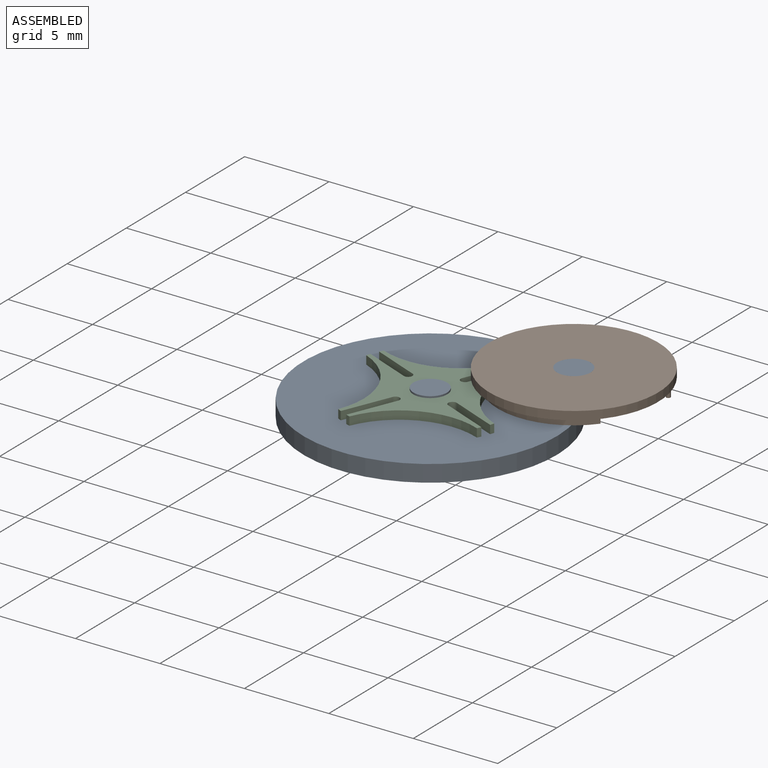
[diagram: assembled view]
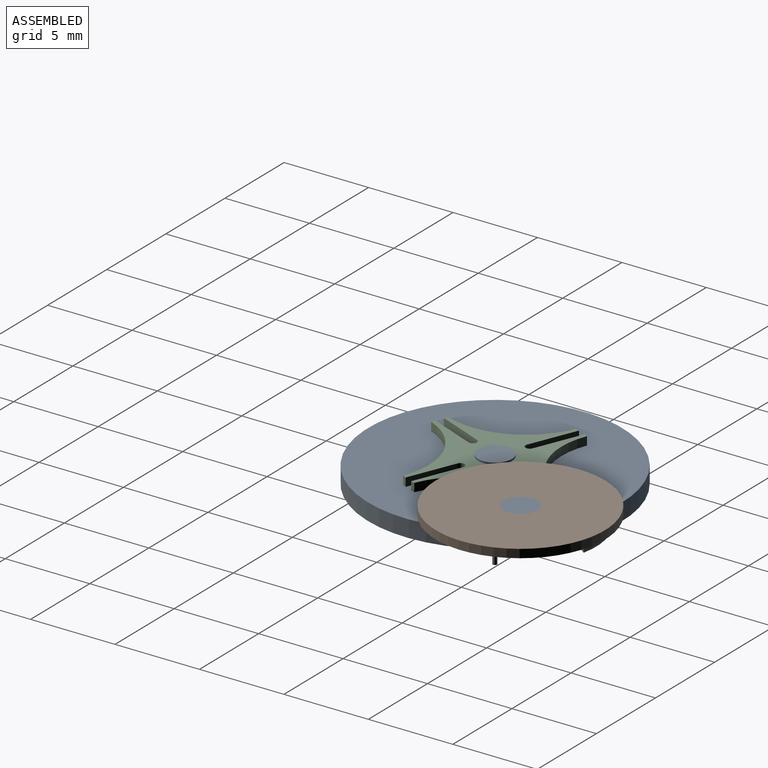
[diagram: assembled view, second angle]
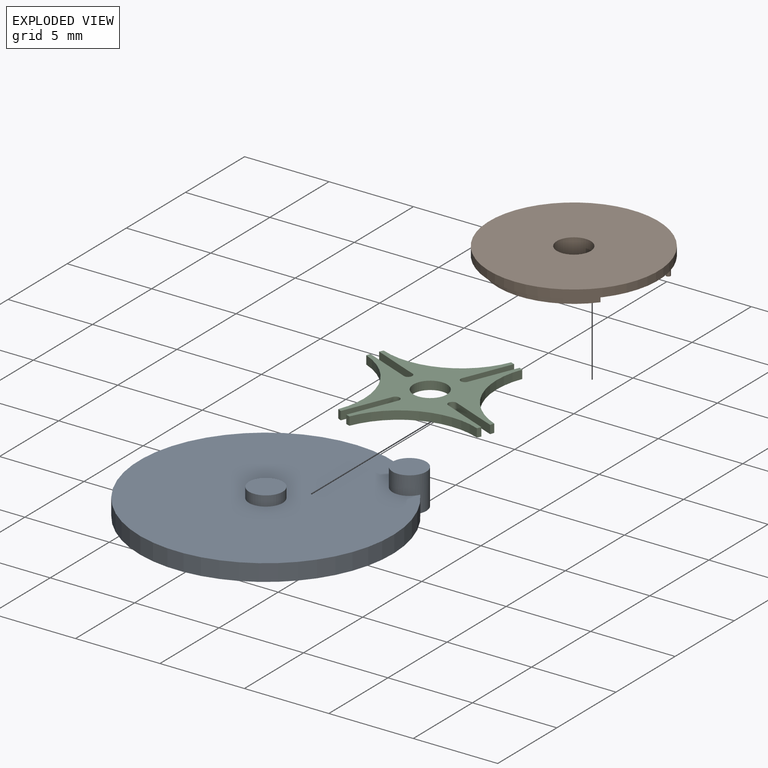
[diagram: exploded view]
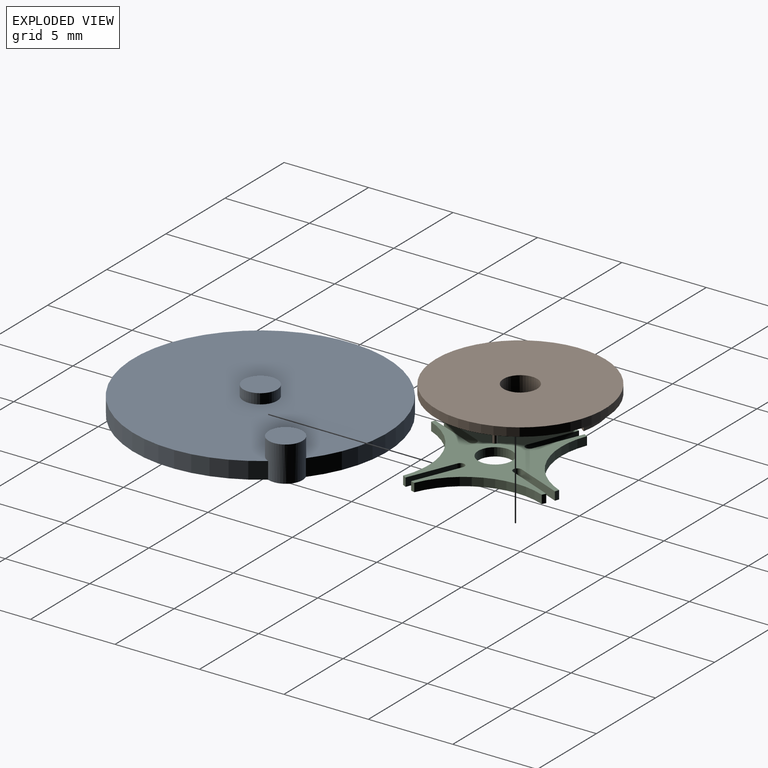
[diagram: exploded view, second angle]
ASSEMBLY  parts=3 mates=2
PART A: 7 faces, bbox 15x15x2.1 mm
  f0: plane 15x15mm, normal (0,0,1), area 171.2mm2, adj f1,f2,f4
  f1: cylinder r=7.5mm len=15mm, axis (0,0,-1), area 45.3mm2, adj f0,f2,f3
  f2: cylinder r=1mm len=2.1mm, axis (0,0,-1), area 9.3mm2, adj f0,f1,f3,f6
  f3: plane 15x15mm, normal (0,0,-1), area 177.5mm2, adj f1,f2
  f4: cylinder r=1mm len=2mm, axis (0,0,-1), area 3.8mm2, adj f0,f5
  f5: plane 2x2mm, normal (0,0,1), area 3.1mm2, adj f4
  f6: plane 2x2mm, normal (0,0,1), area 3.1mm2, adj f2
PART B: 10 faces, bbox 10x10x1 mm
  f0: plane 10x10mm, normal (0,0,1), area 36.8mm2, adj f1,f2,f4,f5,f6,f8
  f1: cylinder r=1mm len=2mm, axis (0,0,1), area 5.1mm2, adj f0,f3,f4,f6,f7
  f2: cylinder r=5mm len=10mm, axis (0,0,1), area 15.7mm2, adj f0,f3
  f3: plane 10x10mm, normal (0,0,-1), area 75.4mm2, adj f1,f2
  f4: cylinder r=4.5mm len=2.89mm, axis (0,0,-1), area 1.8mm2, adj f0,f1,f5,f7
  f5: cylinder r=4.5mm len=9mm, axis (0,0,-1), area 9.6mm2, adj f0,f4,f6,f7
  f6: cylinder r=4.5mm len=2.89mm, axis (0,0,-1), area 1.8mm2, adj f0,f1,f5,f7
  f7: plane 9x6.88mm, normal (0,0,1), area 38.5mm2, adj f1,f4,f5,f6
  f8: cylinder r=0.12mm len=0.5mm, axis (0,0,-1), area 0.4mm2, adj f0,f9
  f9: plane 0.25x0.25mm, normal (0,0,1), area 0mm2, adj f8
PART C: 27 faces, bbox 10x10x0.5 mm
  f0: cylinder r=4.5mm len=4.48mm, axis (0,0,-1), area 3.5mm2, adj f1,f24,f25,f26
  f1: cylinder r=5mm len=0.5mm, axis (0,0,-1), area 0.1mm2, adj f0,f2,f25,f26
  f2: plane 2.99x0.5mm, normal (1,0,0), area 1.5mm2, adj f1,f3,f25,f26
  f3: cylinder r=0.25mm len=0.5mm, axis (0,0,-1), area 0.4mm2, adj f2,f4,f25,f26
  f4: plane 2.99x0.5mm, normal (-1,0,0), area 1.5mm2, adj f3,f5,f25,f26
  f5: cylinder r=5mm len=0.5mm, axis (0,0,-1), area 0.1mm2, adj f4,f6,f25,f26
  f6: cylinder r=4.5mm len=4.48mm, axis (0,0,-1), area 3.5mm2, adj f5,f7,f25,f26
  f7: cylinder r=5mm len=0.5mm, axis (0,0,-1), area 0.1mm2, adj f6,f8,f25,f26
  f8: plane 2.99x0.5mm, normal (0,1,0), area 1.5mm2, adj f7,f9,f25,f26
  f9: cylinder r=0.25mm len=0.5mm, axis (0,0,-1), area 0.4mm2, adj f8,f10,f25,f26
  f10: plane 2.99x0.5mm, normal (0,-1,0), area 1.5mm2, adj f9,f11,f25,f26
  f11: cylinder r=5mm len=0.5mm, axis (0,0,-1), area 0.1mm2, adj f10,f12,f25,f26
  f12: cylinder r=4.5mm len=4.48mm, axis (0,0,-1), area 3.5mm2, adj f11,f13,f25,f26
  f13: cylinder r=5mm len=0.5mm, axis (0,0,-1), area 0.1mm2, adj f12,f14,f25,f26
  f14: plane 2.99x0.5mm, normal (-1,0,0), area 1.5mm2, adj f13,f15,f25,f26
  f15: cylinder r=0.25mm len=0.5mm, axis (0,0,-1), area 0.4mm2, adj f14,f16,f25,f26
  f16: plane 2.99x0.5mm, normal (1,0,0), area 1.5mm2, adj f15,f17,f25,f26
  f17: cylinder r=5mm len=0.5mm, axis (0,0,-1), area 0.1mm2, adj f16,f18,f25,f26
  f18: cylinder r=4.5mm len=4.48mm, axis (0,0,-1), area 3.5mm2, adj f17,f19,f25,f26
  f19: cylinder r=5mm len=0.5mm, axis (0,0,-1), area 0.1mm2, adj f18,f20,f25,f26
  f20: plane 3x0.5mm, normal (0,-1,0), area 1.5mm2, adj f19,f21,f25,f26
  f21: cylinder r=0.25mm len=0.5mm, axis (0,0,-1), area 0.4mm2, adj f20,f22,f25,f26
  f22: plane 3x0.5mm, normal (0,1,0), area 1.5mm2, adj f21,f24,f25,f26
  f23: cylinder r=1mm len=2mm, axis (0,0,-1), area 3.1mm2, adj f25,f26
  f24: cylinder r=5mm len=0.5mm, axis (0,0,-1), area 0.1mm2, adj f0,f22,f25,f26
  f25: plane 9.99x9.99mm, normal (0,0,1), area 26.8mm2, adj f0,f1,f2,f3,f4,f5,f6,f7
  f26: plane 9.99x9.99mm, normal (0,0,-1), area 26.8mm2, adj f0,f1,f2,f3,f4,f5,f6,f7
PLACE A at identity fixed
PLACE B rot(axis=(0.98,0.17,0),180deg) t=(5,5,1.6)mm
PLACE C rot(axis=(0,0,-1),22.4deg) t=(0,0,1)mm
MATE revolute A.f2 <-> B.f1  axis (0,0,1) through (5,5,2.1)mm
MATE revolute C.f19 <-> A.f4  axis (0,0,-1) through (0,0,1)mm
